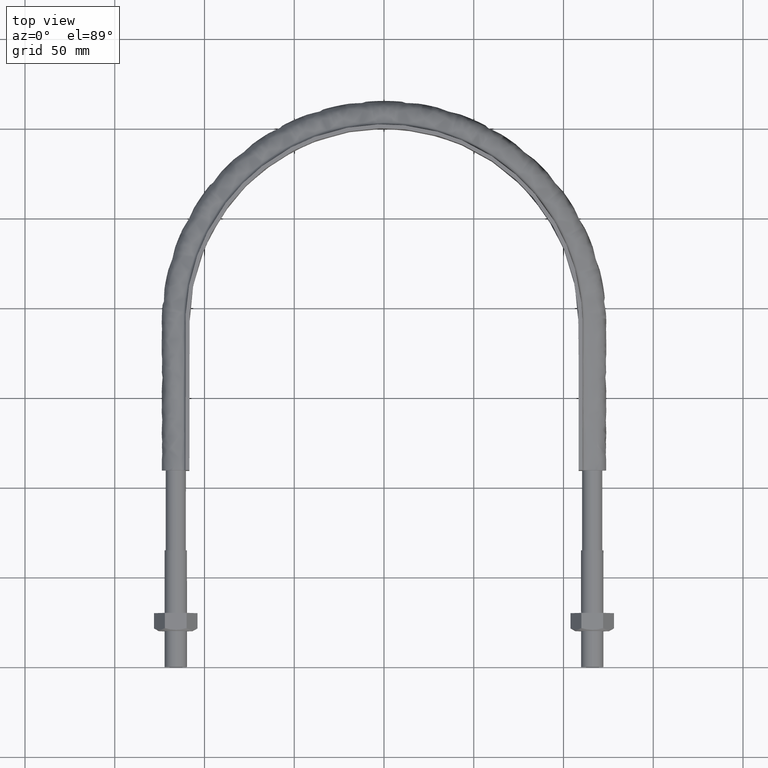
[diagram: clean part render]
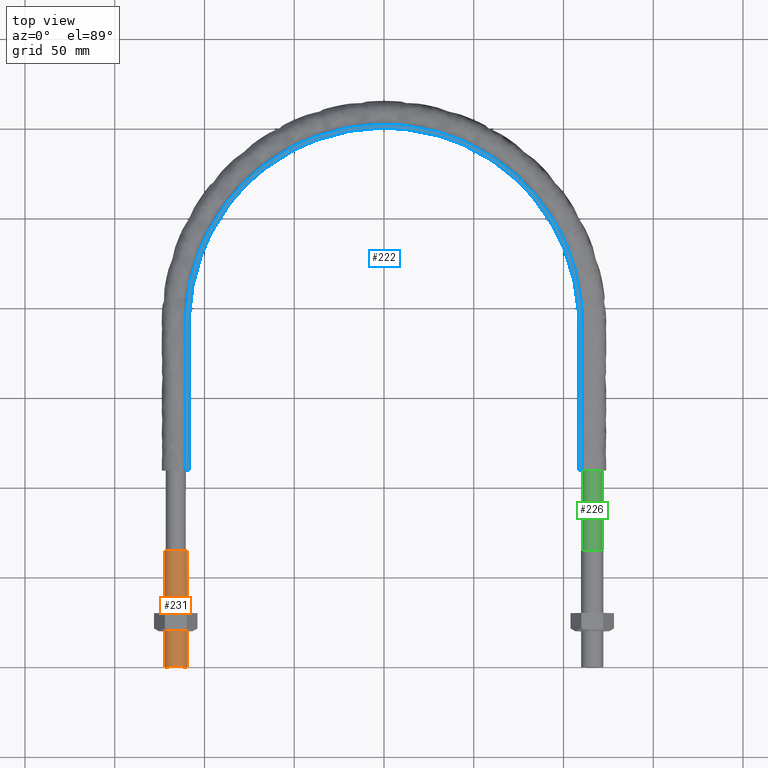
[diagram: same view with three faces highlighted in distinct colors, each labeled with its STEP entity id]
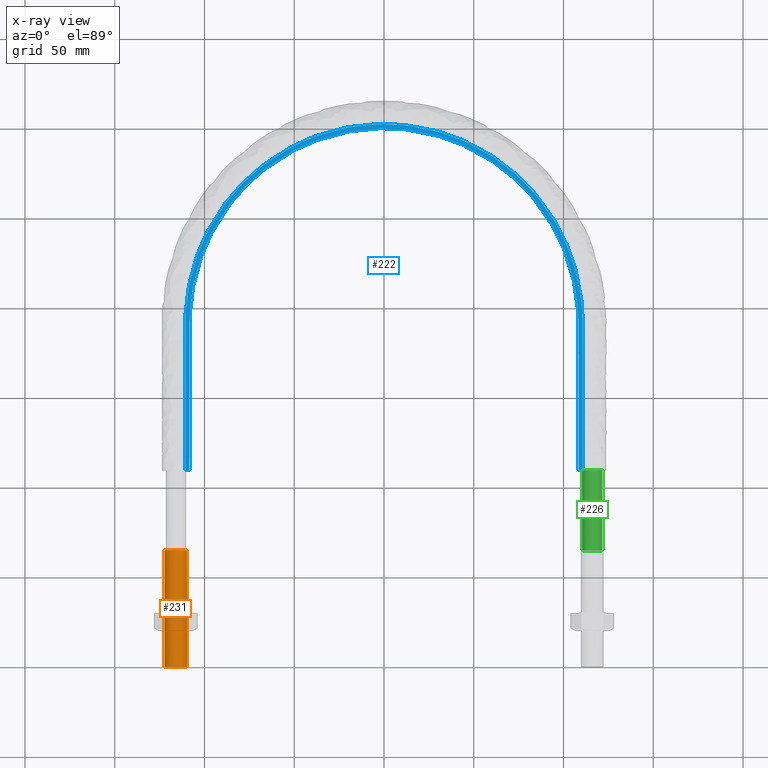
[diagram: x-ray of the same camera — body ghosted, the three highlighted faces saturated]
A machine part, top view with three faces highlighted in distinct colors.
The next image is the same camera in x-ray (body ghosted, the three faces saturated) — at least one of them is partly hidden behind the body in this view.
Their STEP definitions:

[orange] entity #231 — the highlighted cylindrical surface (bore or boss wall) has radius 6.25 mm, axis along (-0, -1, 0).
#231 = ADVANCED_FACE( '', ( #292, #293 ), #294, .T. );
#292 = FACE_OUTER_BOUND( '', #1293, .T. );
#293 = FACE_OUTER_BOUND( '', #1294, .T. );
#294 = CYLINDRICAL_SURFACE( '', #1295, 6.24999999999996 );
#1293 = EDGE_LOOP( '', ( #1471 ) );
#1294 = EDGE_LOOP( '', ( #1472 ) );
#1295 = AXIS2_PLACEMENT_3D( '', #1473, #1474, #1475 );
#1471 = ORIENTED_EDGE( '', *, *, #1687, .T. );
#1472 = ORIENTED_EDGE( '', *, *, #1688, .F. );
#1473 = CARTESIAN_POINT( '', ( -116.000000000000, 370.000000000000, 0.000000000000000 ) );
#1474 = DIRECTION( '', ( -1.83690953073357E-016, -1.00000000000000, 0.000000000000000 ) );
#1475 = DIRECTION( '', ( -1.00000000000000, 1.83690953073357E-016, 0.000000000000000 ) );
#1687 = EDGE_CURVE( '', #1799, #1799, #1800, .F. );
#1688 = EDGE_CURVE( '', #1801, #1801, #1802, .T. );
#1799 = VERTEX_POINT( '', #2145 );
#1800 = CIRCLE( '', #2146, 6.24999999999996 );
#1801 = VERTEX_POINT( '', #2147 );
#1802 = CIRCLE( '', #2148, 6.24999999999996 );
#2145 = CARTESIAN_POINT( '', ( -109.750000000000, 5.43630827745494E-014, 0.000000000000000 ) );
#2146 = AXIS2_PLACEMENT_3D( '', #2403, #2404, #2405 );
#2147 = CARTESIAN_POINT( '', ( -116.000000000000, 65.0000000000000, 6.24999999999996 ) );
#2148 = AXIS2_PLACEMENT_3D( '', #2406, #2407, #2408 );
#2403 = CARTESIAN_POINT( '', ( -116.000000000000, 5.55111512312578E-014, 0.000000000000000 ) );
#2404 = DIRECTION( '', ( -1.83690953073357E-016, -1.00000000000000, 0.000000000000000 ) );
#2405 = DIRECTION( '', ( 1.00000000000000, -1.83690953073357E-016, 0.000000000000000 ) );
#2406 = CARTESIAN_POINT( '', ( -116.000000000000, 65.0000000000000, 0.000000000000000 ) );
#2407 = DIRECTION( '', ( 2.09140834898085E-079, 1.00000000000000, 3.37423662409982E-032 ) );
#2408 = DIRECTION( '', ( 0.000000000000000, -3.37423662409982E-032, 1.00000000000000 ) );

[blue] entity #222 — the highlighted planar face has unit normal (0, 0, 1).
#222 = ADVANCED_FACE( '', ( #268 ), #269, .T. );
#268 = FACE_OUTER_BOUND( '', #896, .T. );
#269 = PLANE( '', #897 );
#896 = EDGE_LOOP( '', ( #1383, #1384, #1385, #1386 ) );
#897 = AXIS2_PLACEMENT_3D( '', #1387, #1388, #1389 );
#1383 = ORIENTED_EDGE( '', *, *, #1654, .T. );
#1384 = ORIENTED_EDGE( '', *, *, #1665, .T. );
#1385 = ORIENTED_EDGE( '', *, *, #1663, .T. );
#1386 = ORIENTED_EDGE( '', *, *, #1660, .F. );
#1387 = CARTESIAN_POINT( '', ( 150.000000000000, 409.500000000000, 15.0000000000000 ) );
#1388 = DIRECTION( '', ( 0.000000000000000, 0.000000000000000, 1.00000000000000 ) );
#1389 = DIRECTION( '', ( 1.00000000000000, 0.000000000000000, 0.000000000000000 ) );
#1654 = EDGE_CURVE( '', #1738, #1736, #1739, .T. );
#1660 = EDGE_CURVE( '', #1738, #1746, #1749, .T. );
#1663 = EDGE_CURVE( '', #1751, #1746, #1754, .T. );
#1665 = EDGE_CURVE( '', #1736, #1751, #1757, .T. );
#1736 = VERTEX_POINT( '', #1884 );
#1738 = VERTEX_POINT( '', #1887 );
#1739 = LINE( '', #1888, #1889 );
#1746 = VERTEX_POINT( '', #1937 );
#1749 = B_SPLINE_CURVE_WITH_KNOTS( '', 3, ( #1986, #1987, #1988, #1989, #1990, #1991, #1992, #1993, #1994, #1995, #1996, #1997, #1998, #1999, #2000, #2001, #2002 ), .UNSPECIFIED., .F., .F., ( 4, 3, 1, 1, 1, 1, 1, 1, 1, 3, 4 ), ( -10.0000000000000, -9.00000000000000, -8.00000000000000, -7.00000000000000, -6.00000000000000, -5.00000000000000, -4.00000000000000, -3.00000000000000, -2.00000000000000, -1.00000000000000, 0.000000000000000 ), .UNSPECIFIED. );
#1751 = VERTEX_POINT( '', #2004 );
#1754 = LINE( '', #2009, #2010 );
#1757 = B_SPLINE_CURVE_WITH_KNOTS( '', 3, ( #2023, #2024, #2025, #2026, #2027, #2028, #2029, #2030, #2031, #2032, #2033, #2034, #2035, #2036, #2037, #2038, #2039 ), .UNSPECIFIED., .F., .F., ( 4, 3, 1, 1, 1, 1, 1, 1, 1, 3, 4 ), ( -10.0000000000000, -9.00000000000000, -8.00000000000000, -7.00000000000000, -6.00000000000000, -5.00000000000000, -4.00000000000000, -3.00000000000000, -2.00000000000000, -1.00000000000000, 0.000000000000000 ), .UNSPECIFIED. );
#1884 = CARTESIAN_POINT( '', ( -108.400000000000, 109.500000000000, 15.0000000000000 ) );
#1887 = CARTESIAN_POINT( '', ( -110.600000000000, 109.500000000000, 15.0000000000000 ) );
#1888 = CARTESIAN_POINT( '', ( -150.000000000000, 109.500000000000, 15.0000000000000 ) );
#1889 = VECTOR( '', #2386, 1000.00000000000 );
#1937 = CARTESIAN_POINT( '', ( 110.600000000000, 109.500000000000, 15.0000000000000 ) );
#1986 = CARTESIAN_POINT( '', ( -110.600000000000, 109.500000000000, 15.0000000000000 ) );
#1987 = CARTESIAN_POINT( '', ( -110.600000000000, 136.866666666667, 15.0000000000000 ) );
#1988 = CARTESIAN_POINT( '', ( -110.600000000000, 164.233333333333, 15.0000000000000 ) );
#1989 = CARTESIAN_POINT( '', ( -110.600000000000, 191.600000000000, 15.0000000000000 ) );
#1990 = CARTESIAN_POINT( '', ( -110.600000000000, 206.066236657480, 15.0000000000000 ) );
#1991 = CARTESIAN_POINT( '', ( -104.841264996974, 235.031001602308, 15.0000000000000 ) );
#1992 = CARTESIAN_POINT( '', ( -80.2420302850801, 271.840865123178, 15.0000000000000 ) );
#1993 = CARTESIAN_POINT( '', ( -43.4266738580984, 296.441597900375, 15.0000000000000 ) );
#1994 = CARTESIAN_POINT( '', ( 7.55241092739552E-014, 305.079201049813, 15.0000000000000 ) );
#1995 = CARTESIAN_POINT( '', ( 43.4266738580984, 296.441597900375, 15.0000000000000 ) );
#1996 = CARTESIAN_POINT( '', ( 80.2420302850802, 271.840865123178, 15.0000000000000 ) );
#1997 = CARTESIAN_POINT( '', ( 104.841264996974, 235.031001602308, 15.0000000000000 ) );
#1998 = CARTESIAN_POINT( '', ( 110.600000000000, 206.066236657480, 15.0000000000000 ) );
#1999 = CARTESIAN_POINT( '', ( 110.600000000000, 191.600000000000, 15.0000000000000 ) );
#2000 = CARTESIAN_POINT( '', ( 110.600000000000, 164.233333333333, 15.0000000000000 ) );
#2001 = CARTESIAN_POINT( '', ( 110.600000000000, 136.866666666667, 15.0000000000000 ) );
#2002 = CARTESIAN_POINT( '', ( 110.600000000000, 109.500000000000, 15.0000000000000 ) );
#2004 = CARTESIAN_POINT( '', ( 108.400000000000, 109.500000000000, 15.0000000000000 ) );
#2009 = CARTESIAN_POINT( '', ( -150.000000000000, 109.500000000000, 15.0000000000000 ) );
#2010 = VECTOR( '', #2390, 1000.00000000000 );
#2023 = CARTESIAN_POINT( '', ( -108.400000000000, 109.500000000000, 15.0000000000001 ) );
#2024 = CARTESIAN_POINT( '', ( -108.400000000000, 136.866666666667, 15.0000000000001 ) );
#2025 = CARTESIAN_POINT( '', ( -108.400000000000, 164.233333333333, 15.0000000000001 ) );
#2026 = CARTESIAN_POINT( '', ( -108.400000000000, 191.600000000000, 15.0000000000001 ) );
#2027 = CARTESIAN_POINT( '', ( -108.400000000000, 205.774498518656, 15.0000000000001 ) );
#2028 = CARTESIAN_POINT( '', ( -102.755814879494, 234.168943035043, 15.0000000000001 ) );
#2029 = CARTESIAN_POINT( '', ( -78.6458958671129, 270.244256009620, 15.0000000000001 ) );
#2030 = CARTESIAN_POINT( '', ( -42.5628521357854, 294.356283410206, 15.0000000000001 ) );
#2031 = CARTESIAN_POINT( '', ( 7.87171205978664E-014, 302.821858294897, 15.0000000000001 ) );
#2032 = CARTESIAN_POINT( '', ( 42.5628521357854, 294.356283410206, 15.0000000000001 ) );
#2033 = CARTESIAN_POINT( '', ( 78.6458958671129, 270.244256009621, 15.0000000000001 ) );
#2034 = CARTESIAN_POINT( '', ( 102.755814879494, 234.168943035043, 15.0000000000001 ) );
#2035 = CARTESIAN_POINT( '', ( 108.400000000000, 205.774498518656, 15.0000000000001 ) );
#2036 = CARTESIAN_POINT( '', ( 108.400000000000, 191.600000000000, 15.0000000000001 ) );
#2037 = CARTESIAN_POINT( '', ( 108.400000000000, 164.233333333333, 15.0000000000001 ) );
#2038 = CARTESIAN_POINT( '', ( 108.400000000000, 136.866666666667, 15.0000000000001 ) );
#2039 = CARTESIAN_POINT( '', ( 108.400000000000, 109.500000000000, 15.0000000000001 ) );
#2386 = DIRECTION( '', ( 1.00000000000000, -1.22460635382238E-016, 0.000000000000000 ) );
#2390 = DIRECTION( '', ( 1.00000000000000, -1.22460635382238E-016, 0.000000000000000 ) );

[green] entity #226 — the highlighted cylindrical surface (bore or boss wall) has radius 5.6 mm, axis along (0, 1, -0).
#226 = ADVANCED_FACE( '', ( #277, #278 ), #279, .T. );
#277 = FACE_OUTER_BOUND( '', #1092, .T. );
#278 = FACE_OUTER_BOUND( '', #1093, .T. );
#279 = CYLINDRICAL_SURFACE( '', #1094, 5.59999999999999 );
#1092 = EDGE_LOOP( '', ( #1421, #1422, #1423, #1424, #1425, #1426, #1427, #1428 ) );
#1093 = EDGE_LOOP( '', ( #1429 ) );
#1094 = AXIS2_PLACEMENT_3D( '', #1430, #1431, #1432 );
#1421 = ORIENTED_EDGE( '', *, *, #1667, .F. );
#1422 = ORIENTED_EDGE( '', *, *, #1668, .F. );
#1423 = ORIENTED_EDGE( '', *, *, #1669, .F. );
#1424 = ORIENTED_EDGE( '', *, *, #1670, .F. );
#1425 = ORIENTED_EDGE( '', *, *, #1671, .F. );
#1426 = ORIENTED_EDGE( '', *, *, #1672, .F. );
#1427 = ORIENTED_EDGE( '', *, *, #1673, .F. );
#1428 = ORIENTED_EDGE( '', *, *, #1674, .F. );
#1429 = ORIENTED_EDGE( '', *, *, #1675, .T. );
#1430 = CARTESIAN_POINT( '', ( 116.000000000000, 109.500000000000, -2.74005671667757E-014 ) );
#1431 = DIRECTION( '', ( 2.44921270764475E-016, 1.00000000000000, -3.06151588455594E-016 ) );
#1432 = DIRECTION( '', ( 1.00000000000000, -2.44921270764475E-016, -1.50944387002457E-047 ) );
#1667 = EDGE_CURVE( '', #1759, #1760, #1761, .T. );
#1668 = EDGE_CURVE( '', #1762, #1759, #1763, .T. );
#1669 = EDGE_CURVE( '', #1764, #1762, #1765, .T. );
#1670 = EDGE_CURVE( '', #1766, #1764, #1767, .T. );
#1671 = EDGE_CURVE( '', #1768, #1766, #1769, .T. );
#1672 = EDGE_CURVE( '', #1770, #1768, #1771, .T. );
#1673 = EDGE_CURVE( '', #1772, #1770, #1773, .T. );
#1674 = EDGE_CURVE( '', #1760, #1772, #1774, .T. );
#1675 = EDGE_CURVE( '', #1775, #1775, #1776, .F. );
#1759 = VERTEX_POINT( '', #2057 );
#1760 = VERTEX_POINT( '', #2058 );
#1761 = B_SPLINE_CURVE_WITH_KNOTS( '', 3, ( #2059, #2060, #2061, #2062 ), .UNSPECIFIED., .F., .F., ( 4, 4 ), ( 0.000000000000000, 1.00000000000000 ), .UNSPECIFIED. );
#1762 = VERTEX_POINT( '', #2063 );
#1763 = B_SPLINE_CURVE_WITH_KNOTS( '', 3, ( #2064, #2065, #2066, #2067 ), .UNSPECIFIED., .F., .F., ( 4, 4 ), ( 0.000000000000000, 1.00000000000000 ), .UNSPECIFIED. );
#1764 = VERTEX_POINT( '', #2068 );
#1765 = B_SPLINE_CURVE_WITH_KNOTS( '', 3, ( #2069, #2070, #2071, #2072 ), .UNSPECIFIED., .F., .F., ( 4, 4 ), ( 0.000000000000000, 1.00000000000000 ), .UNSPECIFIED. );
#1766 = VERTEX_POINT( '', #2073 );
#1767 = B_SPLINE_CURVE_WITH_KNOTS( '', 3, ( #2074, #2075, #2076, #2077 ), .UNSPECIFIED., .F., .F., ( 4, 4 ), ( 0.000000000000000, 1.00000000000000 ), .UNSPECIFIED. );
#1768 = VERTEX_POINT( '', #2078 );
#1769 = B_SPLINE_CURVE_WITH_KNOTS( '', 3, ( #2079, #2080, #2081, #2082 ), .UNSPECIFIED., .F., .F., ( 4, 4 ), ( 0.000000000000000, 1.00000000000000 ), .UNSPECIFIED. );
#1770 = VERTEX_POINT( '', #2083 );
#1771 = B_SPLINE_CURVE_WITH_KNOTS( '', 3, ( #2084, #2085, #2086, #2087 ), .UNSPECIFIED., .F., .F., ( 4, 4 ), ( 0.000000000000000, 1.00000000000000 ), .UNSPECIFIED. );
#1772 = VERTEX_POINT( '', #2088 );
#1773 = B_SPLINE_CURVE_WITH_KNOTS( '', 3, ( #2089, #2090, #2091, #2092 ), .UNSPECIFIED., .F., .F., ( 4, 4 ), ( 0.000000000000000, 1.00000000000000 ), .UNSPECIFIED. );
#1774 = B_SPLINE_CURVE_WITH_KNOTS( '', 3, ( #2093, #2094, #2095, #2096 ), .UNSPECIFIED., .F., .F., ( 4, 4 ), ( 0.000000000000000, 1.00000000000000 ), .UNSPECIFIED. );
#1775 = VERTEX_POINT( '', #2097 );
#1776 = CIRCLE( '', #2098, 5.59999999999999 );
#2057 = CARTESIAN_POINT( '', ( 119.959797974660, 109.500000000000, 3.95979797462947 ) );
#2058 = CARTESIAN_POINT( '', ( 121.600000000000, 109.500000000000, -2.74005671667757E-014 ) );
#2059 = CARTESIAN_POINT( '', ( 119.959797974660, 109.500000000000, 3.95979797462948 ) );
#2060 = CARTESIAN_POINT( '', ( 120.994112549710, 109.500000000000, 2.92548339957166 ) );
#2061 = CARTESIAN_POINT( '', ( 121.600000000011, 109.500000000000, 1.46274169976379 ) );
#2062 = CARTESIAN_POINT( '', ( 121.600000000000, 109.500000000000, -4.13877237842446E-011 ) );
#2063 = CARTESIAN_POINT( '', ( 116.000000000000, 109.500000000000, 5.59999999999997 ) );
#2064 = CARTESIAN_POINT( '', ( 116.000000000000, 109.500000000000, 5.59999999999999 ) );
#2065 = CARTESIAN_POINT( '', ( 117.462741699804, 109.500000000000, 5.59999999999999 ) );
#2066 = CARTESIAN_POINT( '', ( 118.925483399608, 109.500000000000, 4.99411254968950 ) );
#2067 = CARTESIAN_POINT( '', ( 119.959797974660, 109.500000000000, 3.95979797462949 ) );
#2068 = CARTESIAN_POINT( '', ( 112.040202025355, 109.500000000000, 3.95979797464414 ) );
#2069 = CARTESIAN_POINT( '', ( 112.040202025379, 109.500000000000, 3.95979797466838 ) );
#2070 = CARTESIAN_POINT( '', ( 113.074516600434, 109.500000000000, 4.99411254971033 ) );
#2071 = CARTESIAN_POINT( '', ( 114.537258300236, 109.500000000000, 5.60000000000892 ) );
#2072 = CARTESIAN_POINT( '', ( 116.000000000036, 109.500000000000, 5.59999999999960 ) );
#2073 = CARTESIAN_POINT( '', ( 110.400000000000, 109.500000000000, -6.97890139867719E-014 ) );
#2074 = CARTESIAN_POINT( '', ( 110.400000000000, 109.500000000000, -1.08420217248550E-016 ) );
#2075 = CARTESIAN_POINT( '', ( 110.400000000000, 109.500000000000, 1.46274169979680 ) );
#2076 = CARTESIAN_POINT( '', ( 111.005887450304, 109.500000000000, 2.92548339959359 ) );
#2077 = CARTESIAN_POINT( '', ( 112.040202025355, 109.500000000000, 3.95979797464434 ) );
#2078 = CARTESIAN_POINT( '', ( 112.040202025362, 109.500000000000, -3.95979797465115 ) );
#2079 = CARTESIAN_POINT( '', ( 112.040202025362, 109.500000000000, -3.95979797465138 ) );
#2080 = CARTESIAN_POINT( '', ( 111.005887450307, 109.500000000000, -2.92548339960023 ) );
#2081 = CARTESIAN_POINT( '', ( 110.400000000000, 109.500000000000, -1.46274169980170 ) );
#2082 = CARTESIAN_POINT( '', ( 110.400000000000, 109.500000000000, -3.43009041309239E-012 ) );
#2083 = CARTESIAN_POINT( '', ( 116.000000000000, 109.500000000000, -5.60000000000002 ) );
#2084 = CARTESIAN_POINT( '', ( 116.000000000000, 109.500000000000, -5.59999999999999 ) );
#2085 = CARTESIAN_POINT( '', ( 114.537258300206, 109.500000000000, -5.59999999999999 ) );
#2086 = CARTESIAN_POINT( '', ( 113.074516600412, 109.500000000000, -4.99411254969804 ) );
#2087 = CARTESIAN_POINT( '', ( 112.040202025362, 109.500000000000, -3.95979797465139 ) );
#2088 = CARTESIAN_POINT( '', ( 119.959797974646, 109.500000000000, -3.95979797464350 ) );
#2089 = CARTESIAN_POINT( '', ( 119.959797974646, 109.500000000000, -3.95979797464353 ) );
#2090 = CARTESIAN_POINT( '', ( 118.925483399595, 109.500000000000, -4.99411254969475 ) );
#2091 = CARTESIAN_POINT( '', ( 117.462741699798, 109.500000000000, -5.59999999999961 ) );
#2092 = CARTESIAN_POINT( '', ( 116.000000000002, 109.500000000000, -5.60000000000001 ) );
#2093 = CARTESIAN_POINT( '', ( 121.600000000000, 109.500000000000, -1.81425882262374E-011 ) );
#2094 = CARTESIAN_POINT( '', ( 121.599999999995, 109.500000000000, -1.46274169981302 ) );
#2095 = CARTESIAN_POINT( '', ( 120.994112549687, 109.500000000000, -2.92548339960916 ) );
#2096 = CARTESIAN_POINT( '', ( 119.959797974632, 109.500000000000, -3.95979797465758 ) );
#2097 = CARTESIAN_POINT( '', ( 121.600000000000, 65.0000000000000, -1.37768214805018E-014 ) );
#2098 = AXIS2_PLACEMENT_3D( '', #2391, #2392, #2393 );
#2391 = CARTESIAN_POINT( '', ( 116.000000000000, 65.0000000000000, -1.37768214805018E-014 ) );
#2392 = DIRECTION( '', ( -1.83690953073357E-016, -1.00000000000000, 0.000000000000000 ) );
#2393 = DIRECTION( '', ( 1.00000000000000, -1.83690953073357E-016, 0.000000000000000 ) );